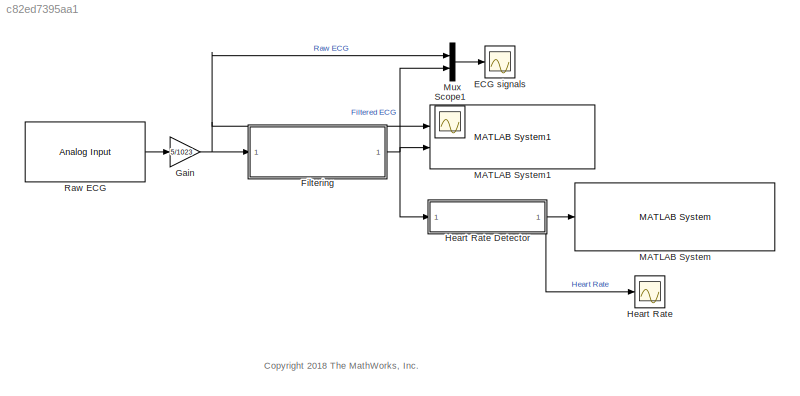
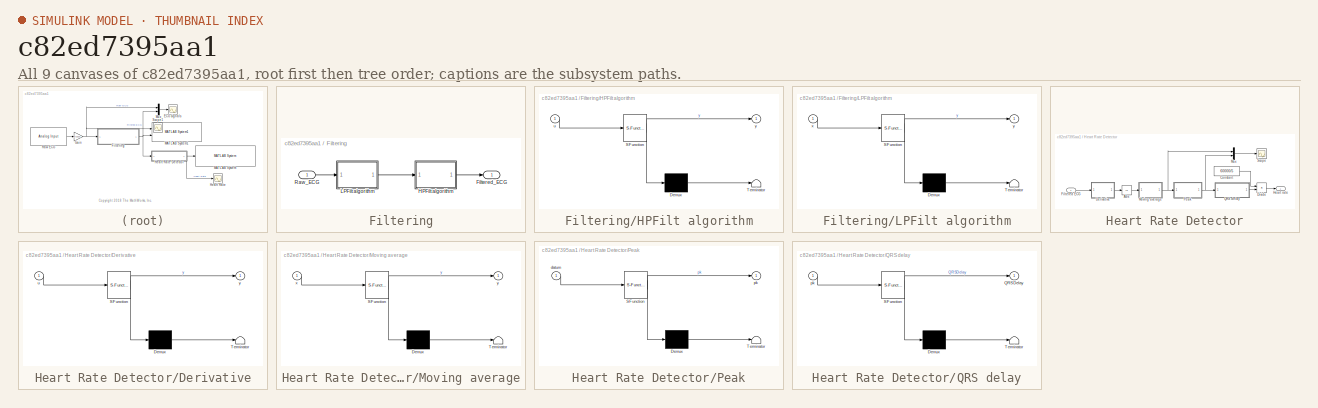
[diagram: thumbnail index - all 9 canvases of the model, root first then tree order]
MODEL slx_c82ed7395aa1
KIND model
CONFIG AbsTol = auto
CONFIG EnableMultiTasking = on
CONFIG FixedStep = 1/200
CONFIG MaxStep = auto
CONFIG MinStep = auto
CONFIG RelTol = 1e-3
CONFIG SampleTimeConstraint = Unconstrained
CONFIG Solver = FixedStepDiscrete
CONFIG SolverName = FixedStepDiscrete
CONFIG StartTime = 0.0
CONFIG StopTime = inf
BLOCK [Scope] ECG signals
  Floating = off
  NumInputPorts = 1
  Ports = [1]
  ScopeSpecificationString = Simulink.scopes.TimeScopeBlockCfg('CurrentConfiguration', extmgr.ConfigurationSet(extmgr.Configuration('Core','General UI',true),extmgr.Configuration('Core','Source UI',true),extmgr.Configuration('Sources','WiredSimulink',true,'DataLoggingVariableName','ScopeData1'),extmgr.Configuration('Visuals','Time Domain',true,'SerializedDisplays',{struct('MinYLimReal','-2.5069','MaxYLimReal','5.61687','YLabe...<+1406ch>
BLOCK [SubSystem] Filtering
  Ports = [1, 1]
  RequestExecContextInheritance = off
BLOCK [Outport] Filtering/Filtered_ECG
  IconDisplay = Port number
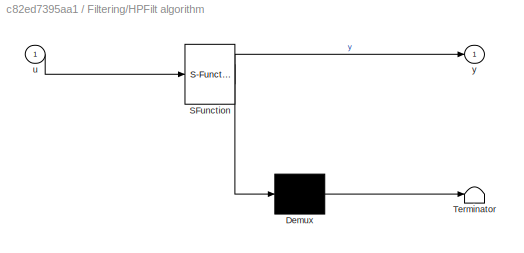
BLOCK [SubSystem] Filtering/HPFilt algorithm
  ErrorFcn = Stateflow.Translate.translate
  PermitHierarchicalResolution = ExplicitOnly
  Ports = [1, 1]
  RequestExecContextInheritance = off
  SFBlockType = MATLAB Function
  TreatAsAtomicUnit = on
BLOCK [Demux] Filtering/HPFilt algorithm/ Demux 
  Outputs = 1
  Ports = [1, 1]
BLOCK [S-Function] Filtering/HPFilt algorithm/ SFunction 
  EnableBusSupport = off
  FunctionName = sf_sfun
  PortCounts = [1 2]
  Ports = [1, 2]
  SFcnIsStateOwnerBlock = off
  SFunctionDeploymentMode = off
  Tag = Stateflow S-Function HeartSignalsR2017b 1
BLOCK [Terminator] Filtering/HPFilt algorithm/ Terminator 
BLOCK [Inport] Filtering/HPFilt algorithm/u
  IconDisplay = Port number
BLOCK [Outport] Filtering/HPFilt algorithm/y
  IconDisplay = Port number
BLOCK [SubSystem] Filtering/LPFilt algorithm
  ErrorFcn = Stateflow.Translate.translate
  PermitHierarchicalResolution = ExplicitOnly
  Ports = [1, 1]
  RequestExecContextInheritance = off
  SFBlockType = MATLAB Function
  TreatAsAtomicUnit = on
BLOCK [Demux] Filtering/LPFilt algorithm/ Demux 
  Outputs = 1
  Ports = [1, 1]
BLOCK [S-Function] Filtering/LPFilt algorithm/ SFunction 
  EnableBusSupport = off
  FunctionName = sf_sfun
  PortCounts = [1 2]
  Ports = [1, 2]
  SFcnIsStateOwnerBlock = off
  SFunctionDeploymentMode = off
  Tag = Stateflow S-Function HeartSignalsR2017b 2
BLOCK [Terminator] Filtering/LPFilt algorithm/ Terminator 
BLOCK [Inport] Filtering/LPFilt algorithm/x
  IconDisplay = Port number
BLOCK [Outport] Filtering/LPFilt algorithm/y
  IconDisplay = Port number
BLOCK [Inport] Filtering/Raw_ECG
  IconDisplay = Port number
BLOCK [Gain] Gain
  Gain = 5/1023
  OutDataTypeStr = double
  ParamDataTypeStr = Inherit: Inherit via internal rule
  SaturateOnIntegerOverflow = off
BLOCK [Scope] Heart Rate
  Floating = off
  NumInputPorts = 1
  Ports = [1]
  ScopeSpecificationString = Simulink.scopes.TimeScopeBlockCfg('CurrentConfiguration', extmgr.ConfigurationSet(extmgr.Configuration('Core','General UI',true),extmgr.Configuration('Core','Source UI',true),extmgr.Configuration('Sources','WiredSimulink',true,'DataLoggingVariableName','ScopeData1'),extmgr.Configuration('Visuals','Time Domain',true,'SerializedDisplays',{struct('MinYLimReal','159.75','MaxYLimReal','162.25','YLabelR...<+1388ch>
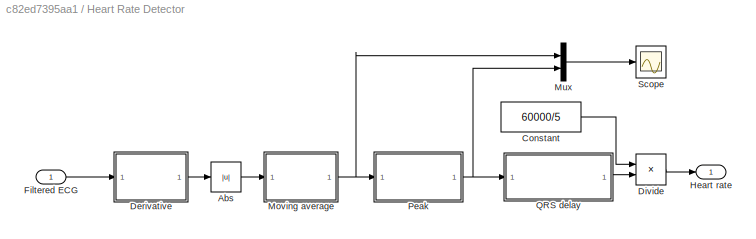
BLOCK [SubSystem] Heart Rate Detector
  Ports = [1, 1]
  RequestExecContextInheritance = off
BLOCK [Abs] Heart Rate Detector/Abs
  SaturateOnIntegerOverflow = off
BLOCK [Constant] Heart Rate Detector/Constant
  OutDataTypeStr = int16
  Value = 60000/5
BLOCK [SubSystem] Heart Rate Detector/Derivative
  ErrorFcn = Stateflow.Translate.translate
  PermitHierarchicalResolution = ExplicitOnly
  Ports = [1, 1]
  RequestExecContextInheritance = off
  SFBlockType = MATLAB Function
  TreatAsAtomicUnit = on
BLOCK [Demux] Heart Rate Detector/Derivative/ Demux 
  Outputs = 1
  Ports = [1, 1]
BLOCK [S-Function] Heart Rate Detector/Derivative/ SFunction 
  EnableBusSupport = off
  FunctionName = sf_sfun
  PortCounts = [1 2]
  Ports = [1, 2]
  SFcnIsStateOwnerBlock = off
  SFunctionDeploymentMode = off
  Tag = Stateflow S-Function HeartSignalsR2017b 3
BLOCK [Terminator] Heart Rate Detector/Derivative/ Terminator 
BLOCK [Inport] Heart Rate Detector/Derivative/u
  IconDisplay = Port number
BLOCK [Outport] Heart Rate Detector/Derivative/y
  IconDisplay = Port number
BLOCK [Product] Heart Rate Detector/Divide
  InputSameDT = off
  Inputs = */
  OutDataTypeStr = Inherit: Inherit via internal rule
  Ports = [2, 1]
  RndMeth = Floor
  SaturateOnIntegerOverflow = off
BLOCK [Inport] Heart Rate Detector/Filtered ECG
  IconDisplay = Port number
BLOCK [Outport] Heart Rate Detector/Heart rate
  IconDisplay = Port number
BLOCK [SubSystem] Heart Rate Detector/Moving average
  ErrorFcn = Stateflow.Translate.translate
  PermitHierarchicalResolution = ExplicitOnly
  Ports = [1, 1]
  RequestExecContextInheritance = off
  SFBlockType = MATLAB Function
  TreatAsAtomicUnit = on
BLOCK [Demux] Heart Rate Detector/Moving average/ Demux 
  Outputs = 1
  Ports = [1, 1]
BLOCK [S-Function] Heart Rate Detector/Moving average/ SFunction 
  EnableBusSupport = off
  FunctionName = sf_sfun
  PortCounts = [1 2]
  Ports = [1, 2]
  SFcnIsStateOwnerBlock = off
  SFunctionDeploymentMode = off
  Tag = Stateflow S-Function HeartSignalsR2017b 4
BLOCK [Terminator] Heart Rate Detector/Moving average/ Terminator 
BLOCK [Inport] Heart Rate Detector/Moving average/x
  IconDisplay = Port number
BLOCK [Outport] Heart Rate Detector/Moving average/y
  IconDisplay = Port number
BLOCK [Mux] Heart Rate Detector/Mux
  DisplayOption = bar
  Inputs = 2
  Ports = [2, 1]
BLOCK [SubSystem] Heart Rate Detector/Peak
  ErrorFcn = Stateflow.Translate.translate
  PermitHierarchicalResolution = ExplicitOnly
  Ports = [1, 1]
  RequestExecContextInheritance = off
  SFBlockType = MATLAB Function
  TreatAsAtomicUnit = on
BLOCK [Demux] Heart Rate Detector/Peak/ Demux 
  Outputs = 1
  Ports = [1, 1]
BLOCK [S-Function] Heart Rate Detector/Peak/ SFunction 
  EnableBusSupport = off
  FunctionName = sf_sfun
  PortCounts = [1 2]
  Ports = [1, 2]
  SFcnIsStateOwnerBlock = off
  SFunctionDeploymentMode = off
  Tag = Stateflow S-Function HeartSignalsR2017b 5
BLOCK [Terminator] Heart Rate Detector/Peak/ Terminator 
BLOCK [Inport] Heart Rate Detector/Peak/datum
  IconDisplay = Port number
BLOCK [Outport] Heart Rate Detector/Peak/pk
  IconDisplay = Port number
BLOCK [SubSystem] Heart Rate Detector/QRS delay
  ErrorFcn = Stateflow.Translate.translate
  PermitHierarchicalResolution = ExplicitOnly
  Ports = [1, 1]
  RequestExecContextInheritance = off
  SFBlockType = MATLAB Function
  TreatAsAtomicUnit = on
BLOCK [Demux] Heart Rate Detector/QRS delay/ Demux 
  Outputs = 1
  Ports = [1, 1]
BLOCK [S-Function] Heart Rate Detector/QRS delay/ SFunction 
  EnableBusSupport = off
  FunctionName = sf_sfun
  PortCounts = [1 2]
  Ports = [1, 2]
  SFcnIsStateOwnerBlock = off
  SFunctionDeploymentMode = off
  Tag = Stateflow S-Function HeartSignalsR2017b 6
BLOCK [Terminator] Heart Rate Detector/QRS delay/ Terminator 
BLOCK [Outport] Heart Rate Detector/QRS delay/QRSDelay
  IconDisplay = Port number
BLOCK [Inport] Heart Rate Detector/QRS delay/pk
  IconDisplay = Port number
BLOCK [Scope] Heart Rate Detector/Scope
  Floating = off
  NumInputPorts = 1
  Ports = [1]
  ScopeSpecificationString = Simulink.scopes.TimeScopeBlockCfg('CurrentConfiguration', extmgr.ConfigurationSet(extmgr.Configuration('Core','General UI',true),extmgr.Configuration('Core','Source UI',true),extmgr.Configuration('Sources','WiredSimulink',true,'DataLoggingVariableName','ScopeData1'),extmgr.Configuration('Visuals','Time Domain',true,'SerializedDisplays',{struct('MinYLimReal','-0.2884','MaxYLimReal','2.59559','YLabe...<+1447ch>
BLOCK [Reference] MATLAB System  REF=tftlibrary/MATLAB System
  Ports = [1]
  SourceBlock = tftlibrary/MATLAB System
  SourceType = displayHR
BLOCK [Reference] MATLAB System1  REF=tftlibrary/MATLAB System1
  Ports = [2]
  SourceBlock = tftlibrary/MATLAB System1
  SourceType = displaySig
BLOCK [Mux] Mux
  DisplayOption = bar
  Inputs = 2
  Ports = [2, 1]
BLOCK [Reference] Raw ECG  REF=arduinolib/Analog Input
  Ports = [0, 1]
  SourceBlock = arduinolib/Analog Input
  SourceProductBaseCode = ARDUINO
  SourceProductName = Simulink Support Package for Arduino Hardware
  SourceType = Arduino Analog Input
BLOCK [Scope] Scope1
  Floating = off
  IOType = viewer
  NumInputPorts = 1
  Ports = []
  ScopeSpecificationString = Simulink.scopes.TimeScopeBlockCfg('CurrentConfiguration', extmgr.ConfigurationSet(extmgr.Configuration('Core','General UI',true),extmgr.Configuration('Core','Source UI',true),extmgr.Configuration('Sources','WiredSimulink',true,'DataLoggingVariableName','ScopeData2'),extmgr.Configuration('Visuals','Time Domain',true,'SerializedDisplays',{struct('MinYLimReal','-43.25','MaxYLimReal','639.25','YLabelR...<+1417ch>
ANNOTATION (root): <copyright redacted>
LINE Filtering/HPFilt algorithm:1 -> Filtering/Filtered_ECG:1
LINE Filtering/LPFilt algorithm:1 -> Filtering/HPFilt algorithm:1
LINE Filtering/Raw_ECG:1 -> Filtering/LPFilt algorithm:1
NET Filtering:1 -> Heart Rate Detector:1, MATLAB System1:2, Mux:2
NET Gain:1 -> Filtering:1, MATLAB System1:1, Mux:1
LINE Heart Rate Detector/Abs:1 -> Heart Rate Detector/Moving average:1
LINE Heart Rate Detector/Constant:1 -> Heart Rate Detector/Divide:1
LINE Heart Rate Detector/Derivative:1 -> Heart Rate Detector/Abs:1
LINE Heart Rate Detector/Divide:1 -> Heart Rate Detector/Heart rate:1
LINE Heart Rate Detector/Filtered ECG:1 -> Heart Rate Detector/Derivative:1
NET Heart Rate Detector/Moving average:1 -> Heart Rate Detector/Mux:1, Heart Rate Detector/Peak:1
LINE Heart Rate Detector/Mux:1 -> Heart Rate Detector/Scope:1
NET Heart Rate Detector/Peak:1 -> Heart Rate Detector/Mux:2, Heart Rate Detector/QRS delay:1
LINE Heart Rate Detector/QRS delay:1 -> Heart Rate Detector/Divide:2
NET Heart Rate Detector:1 -> Heart Rate:1, MATLAB System:1
LINE Mux:1 -> ECG signals:1
LINE Raw ECG:1 -> Gain:1
note: NET lines group one-source signal fan-out (src -> all destinations, sorted); 1:1 wires keep LINE
CHART Filtering/HPFilt algorithm states=1 transitions=1
  STATE_LABEL 'eML_blk_kernel()'
  STATE_LABEL "SCRIPT:\nfunction y = hpfilt(u)\n    %  hpfilt() implements the high pass filter represented by the following\n    %  difference equation:\n    %\n    %       x[n] = x[n-1] + u[n] - u[n-32]\n    %       y[n] = u[n-16] - x[n] ;\n    %\n    %  Note that the filter delay is 15.5 samples\n    \n    % Circular buffer n\ncoder.inline('never');\n    persistent x z n\n    y = cast(0,'like',u);\n    if isempty(x)\n      ...<+268ch>"
CHART Filtering/LPFilt algorithm states=1 transitions=1
  STATE_LABEL 'eML_blk_kernel()'
  STATE_LABEL 'SCRIPT:\nfunction y = lpfilt(x)\n%  lpfilt() implements the digital filter represented by the difference\n%  equation:\n%\n% \ty[n] = 2*y[n-1] - y[n-2] + x[n] - 2*x[n-5] + x[n-10]\n%\n%\tNote that the filter delay is five samples.\n%\n%  y(n) = 2*y(n-1) - y(n-2) + x(n) - 2*x(n-5) + x(n-10)\n%\n%       1*y(n) - 2*y(n-1) + 1*y(n-2) = 1*x(n) + 0*x(n-1) + 0*x(n-2) + 0*x(n-3) +  0*x(n-4) - 2*x(n-5) + 0*x(n-6) + 0*x...<+1417ch>'
CHART Heart Rate Detector/Derivative states=1 transitions=1
  STATE_LABEL 'eML_blk_kernel()'
  STATE_LABEL "SCRIPT:\nfunction y = deriv1(u)\n%  derivative implements the derivative approximation represented by\n%  the difference equation:\n%\n%\ty[n] = 2*x[n] + x[n-1] - x[n-3] - 2*x[n-4]\n%\n%  The filter has a delay of 2.\n\n    coder.inline('never');\n    persistent x1 x2 x3 x4\n    if isempty(x1)\n        x1 = cast(0,'like',u);\n        x2 = cast(0,'like',u);\n        x3 = cast(0,'like',u);\n        x4 = cast(0,'lik...<+145ch>"
CHART Heart Rate Detector/Moving average states=1 transitions=1
  STATE_LABEL 'eML_blk_kernel()'
  STATE_LABEL "SCRIPT:\nfunction y = mvwint(x)\n% mvwint() implements a moving window integrator, averaging\n% the signal values over the last 16\n\n    persistent runningSum\n    persistent x0 x1 x2 x3 x4 x5 x6 x7 x8 x9 x10\n    persistent x11 x12 x13 x14 x15\n    y = cast(0,'like',x);\n    if isempty(runningSum)\n        runningSum = cast(0, 'like', x);\n        x0 = cast(0, 'like', x);\n        x1 = cast(0, 'like', x);\n ...<+824ch>"
CHART Heart Rate Detector/Peak states=1 transitions=1
  STATE_LABEL 'eML_blk_kernel()'
  STATE_LABEL "SCRIPT:\nfunction pk = peak(datum)\n    % peak() takes a datum as input and returns a peak height\n    % when the signal returns to half its peak height, or it has been\n    % 95 ms since the peak height was detected.\n    \n    persistent maxPeak lastDatum timeSinceMax\n    pk = cast(0,'like',datum);\n    if isempty(maxPeak)\n        maxPeak = cast(0,'like',datum);\n        lastDatum = cast(0,'like',datum)...<+729ch>"
CHART Heart Rate Detector/QRS delay states=1 transitions=1
  STATE_LABEL 'eML_blk_kernel()'
  STATE_LABEL 'SCRIPT:\nfunction QRSDelay  = qrs_delay(pk)\n    persistent count\n    persistent lastQRSDelay\n    persistent threshold\n    % Normal low range for a QRS detection is 60ms.\n    % Characteristics of the Normal ECG. Frank G. Yanowitz,\n    % MD. Professor of Medicine. University of Utah School of\n    % Medicine. http://ecg.utah.edu.\n    qrs_duration_in_samples = int32(60e-3 * 5);\n    if isempty(lastQRSDe...<+696ch>'
